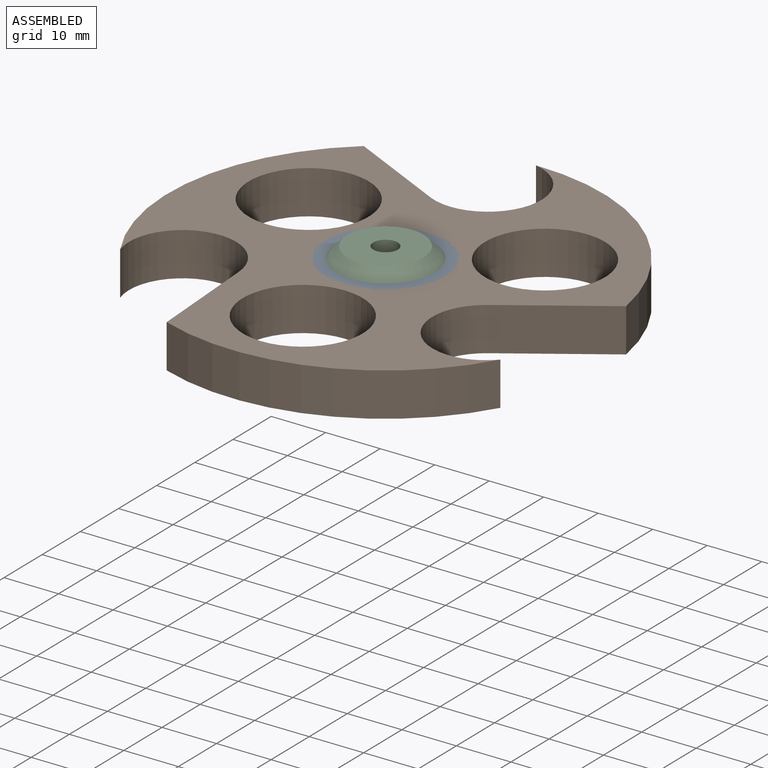
[diagram: assembled view]
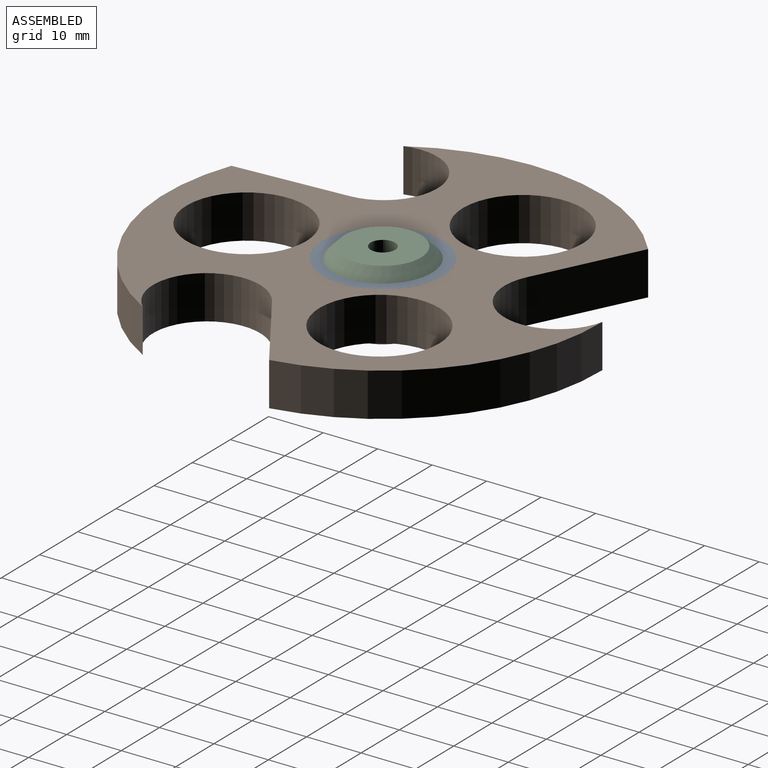
[diagram: assembled view, second angle]
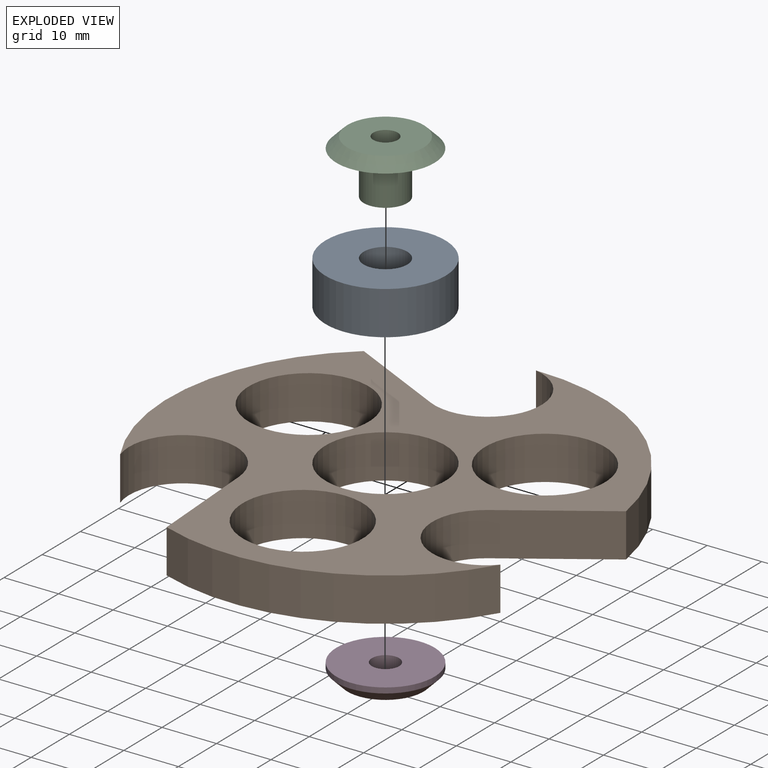
[diagram: exploded view]
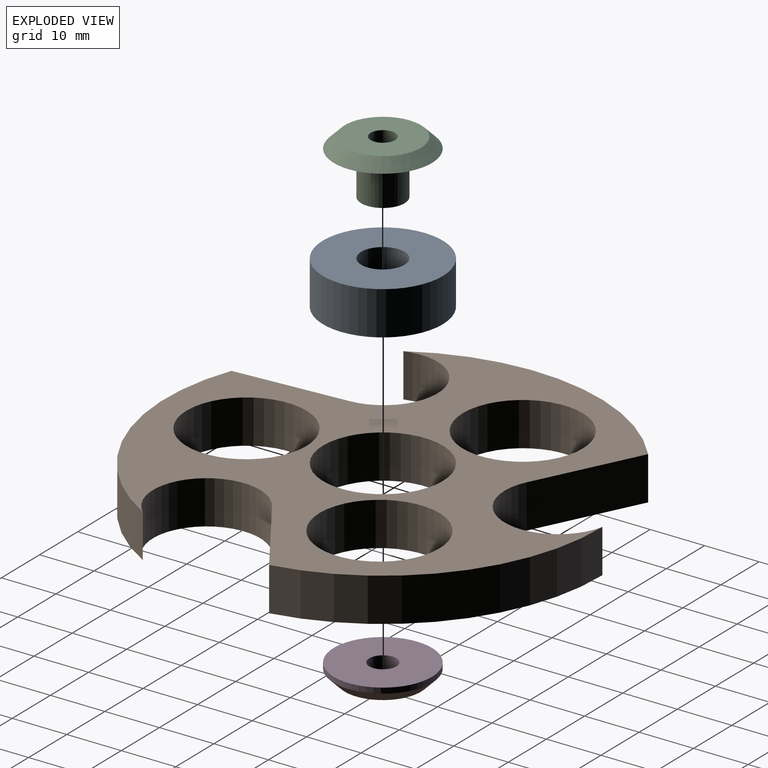
[diagram: exploded view, second angle]
ASSEMBLY  parts=4 mates=3
PART A: 4 faces, bbox 22x22x8 mm
  f0: cylinder r=4mm len=8mm, axis (0,0,-1), area 201.1mm2, adj f2,f3
  f1: cylinder r=11mm len=22mm, axis (0,0,-1), area 552.9mm2, adj f2,f3
  f2: plane 22x22mm, normal (0,0,1), area 329.9mm2, adj f0,f1
  f3: plane 22x22mm, normal (0,0,-1), area 329.9mm2, adj f0,f1
PART B: 15 faces, bbox 79.8x79.9x8 mm
  f0: cylinder r=9.83mm len=19.67mm, axis (0,0,-1), area 266.3mm2, adj f1,f12,f13,f14
  f1: plane 20.84x8mm, normal (1,0,0), area 166.8mm2, adj f0,f2,f13,f14
  f2: cylinder r=40mm len=49.79mm, axis (0,0,-1), area 451.8mm2, adj f1,f3,f13,f14
  f3: cylinder r=9.83mm len=18.35mm, axis (0,0,-1), area 266.3mm2, adj f2,f4,f13,f14
  f4: plane 18.05x10.42mm, normal (-0.5,0.87,0), area 166.8mm2, adj f3,f5,f13,f14
  f5: cylinder r=40mm len=37.56mm, axis (0,0,-1), area 451.8mm2, adj f4,f6,f13,f14
  f6: cylinder r=9.83mm len=19.28mm, axis (0,0,-1), area 266.3mm2, adj f5,f7,f13,f14
  f7: plane 18.05x10.42mm, normal (-0.5,-0.87,0), area 166.8mm2, adj f6,f12,f13,f14
  f8: cylinder r=11mm len=22mm, axis (0,0,-1), area 552.9mm2, adj f13,f14
  f9: cylinder r=11mm len=22mm, axis (0,0,-1), area 552.9mm2, adj f13,f14
  f10: cylinder r=11mm len=22mm, axis (0,0,-1), area 552.9mm2, adj f13,f14
  f11: cylinder r=11mm len=22mm, axis (0,0,-1), area 552.9mm2, adj f13,f14
  f12: cylinder r=40mm len=50.43mm, axis (0,0,-1), area 451.8mm2, adj f0,f7,f13,f14
  f13: plane 79.94x79.79mm, normal (0,0,1), area 2249.9mm2, adj f0,f1,f2,f3,f4,f5,f6,f7
  f14: plane 79.94x79.79mm, normal (0,0,-1), area 2249.9mm2, adj f0,f1,f2,f3,f4,f5,f6,f7
PART C: 6 faces, bbox 18x18x10 mm
  f0: cylinder r=2.25mm len=10mm, axis (0,0,-1), area 141.4mm2, adj f1,f3
  f1: plane 14x14mm, normal (0,0,1), area 138mm2, adj f0,f5
  f2: plane 18x18mm, normal (0,0,-1), area 204.2mm2, adj f4,f5
  f3: plane 8x8mm, normal (0,0,-1), area 34.4mm2, adj f0,f4
  f4: cylinder r=4mm len=8mm, axis (0,0,1), area 201.1mm2, adj f2,f3
  f5: cone r=7mm half-angle=45deg, axis (0,0,-1), area 142.2mm2, adj f1,f2
PART D: 5 faces, bbox 18x18x3 mm
  f0: cylinder r=9mm len=18mm, axis (0,0,1), area 56.5mm2, adj f3,f4
  f1: cylinder r=2.5mm len=5mm, axis (0,0,1), area 47.1mm2, adj f2,f3
  f2: plane 14x14mm, normal (0,0,-1), area 134.3mm2, adj f1,f4
  f3: plane 18x18mm, normal (0,0,1), area 234.8mm2, adj f0,f1
  f4: cone r=7mm half-angle=45deg, axis (0,0,1), area 142.2mm2, adj f0,f2
PLACE A rot(axis=(1,0,0),180deg) t=(-74.8,26.03,8)mm
PLACE B rot(axis=(0,0,-1),176.2deg) t=(72.93,30.88,0)mm
PLACE C t=(-74.8,-26.03,0)mm
PLACE D t=(-74.8,-26.03,0)mm
MATE fastened C.f0 <-> A.f0  axis (0,0,-1) through (0,0,8)mm
MATE revolute B.f2 <-> A.f0  axis (0,0,-1) through (0,0,4)mm
MATE fastened D.f0 <-> C.f0  axis (0,0,1) through (0,0,0)mm
